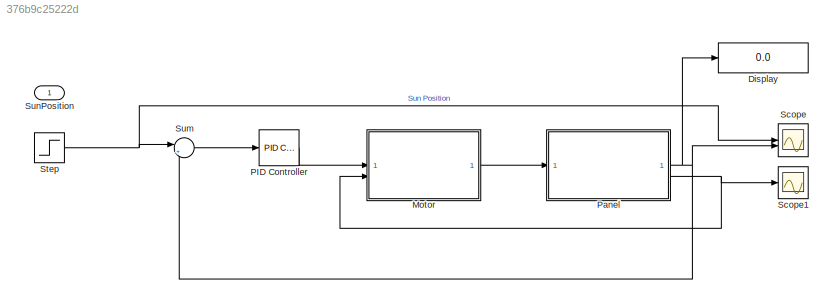
MODEL slx_376b9c25222d
KIND model
CONFIG AbsTol = auto
CONFIG EnableMultiTasking = off
CONFIG FixedStep = auto
CONFIG MaxStep = auto
CONFIG MinStep = auto
CONFIG RelTol = 1e-3
CONFIG SampleTimeConstraint = Unconstrained
CONFIG SolverName = VariableStepAuto
CONFIG StartTime = 0.0
CONFIG StopTime = 3600
BLOCK [Display] Display
  Decimation = 1
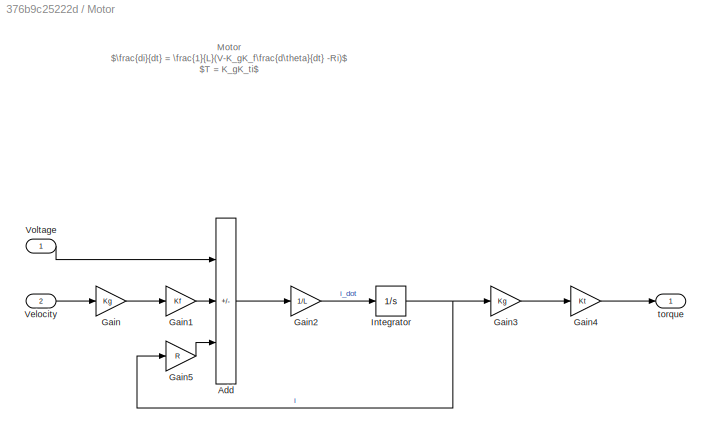
BLOCK [SubSystem] Motor
BLOCK [Sum] Motor/Add
  IconShape = rectangular
  Inputs = +--
BLOCK [Gain] Motor/Gain
  Gain = Kg
BLOCK [Gain] Motor/Gain1
  Gain = Kf
BLOCK [Gain] Motor/Gain2
  Gain = 1/L
BLOCK [Gain] Motor/Gain3
  Gain = Kg
BLOCK [Gain] Motor/Gain4
  Gain = Kt
BLOCK [Gain] Motor/Gain5
  Gain = R
BLOCK [Integrator] Motor/Integrator
BLOCK [Inport] Motor/Velocity
  Port = 2
BLOCK [Inport] Motor/Voltage
BLOCK [Outport] Motor/torque
BLOCK [Reference] PID Controller  REF=slpidlib/PID Controller
  LibrarySourceBlock = simulink/Continuous/PID Controller
  SourceBlock = slpidlib/PID Controller
  SourceType = PID 1dof
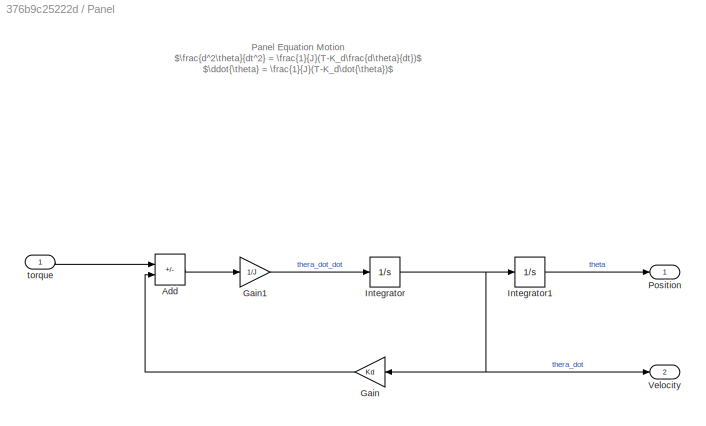
BLOCK [SubSystem] Panel
BLOCK [Sum] Panel/Add
  IconShape = rectangular
  Inputs = +-
BLOCK [Gain] Panel/Gain
  Gain = Kd
  NameLocation = top
BLOCK [Gain] Panel/Gain1
  Gain = 1/J
BLOCK [Integrator] Panel/Integrator
BLOCK [Integrator] Panel/Integrator1
BLOCK [Outport] Panel/Position
BLOCK [Outport] Panel/Velocity
  Port = 2
BLOCK [Inport] Panel/torque
BLOCK [Scope] Scope
  ActiveDisplayYMaximum = 1
  ActiveDisplayYMinimum = -1
  ContainerLayout = {"WindowBounds":[1920,0,1080,1920]}
  Floating = off
  GraphicalSettings = {"AxesScalingProperties":{"AlignXAxis":"Center","AlignYAxis":"Center","AutoScaleXAxisLimits":false,"AxesScaling":"Manual","AxesScalingNumUpdates":10,"ExpandOnly":true,"ScaleAxesLimitsAtStop":false,"XAxisDataRange":100,"YAxisDataRange":80},"DisplayProperties":{"ColorOrder":["auto","auto","auto","auto","auto","auto","auto","auto","auto","auto","auto","auto","auto","auto","auto","auto","auto","auto",...<+40675ch>
  MultipleDisplayCache = [{"MaxYLimMag":1,"MaxYLimReal":1,"MinYLimMag":0,"MinYLimReal":-1,"PlotAsMagnitudePhase":false,"ShowGrid":true,"ShowLegend":true,"Title":"Solar Panel's Motor and Panel Assembly","YLabel":""}]
  NumInputPorts = 2
  ScopeFrameLocation = container
  ShowLegend = on
  Title = Solar Panel's Motor and Panel Assembly
  Visible = on
  WasSavedAsWebScope = on
  WindowPosition = [1921.000000,-839.000000,1080.000000,1883.000000,]
BLOCK [Scope] Scope1
  ActiveDisplayYMaximum = 1
  ActiveDisplayYMinimum = -1
  ContainerLayout = {"WindowBounds":[2221,324,666,519]}
  DataLoggingVariableName = ScopeData1
  Floating = off
  GraphicalSettings = {"Style":{"BackgroundColor":[0.12941176470588237,0.12941176470588237,0.12941176470588237],"AxesColor":[0.07058823529411765,0.07058823529411765,0.07058823529411765],"LabelsColor":[0.8509803921568627,0.8509803921568627,0.8509803921568627],"PreserveColors":false,"Visible":[true],"LineStyle":["-"],"LineWidth":[1.5],"BarWidth":[0.9],"LineColor":["auto"],"LineFaceAlpha":[1],"LineEdgeAlpha":[1],"Marker":...<+2015ch>
  MultipleDisplayCache = [{"MaxYLimMag":1,"MaxYLimReal":1,"MinYLimMag":0,"MinYLimReal":-1,"PlotAsMagnitudePhase":false,"ShowGrid":true,"ShowLegend":false,"Title":"%<SignalLabel>","YLabel":""}]
  NumInputPorts = 1
  ScopeFrameLocation = container
  WasSavedAsWebScope = on
  WindowPosition = [2222.000000,238.000000,666.000000,482.000000,]
BLOCK [Step] Step
  After = sunPosition
  SampleTime = 0
BLOCK [Sum] Sum
  Inputs = |+-
BLOCK [Inport] SunPosition
ANNOTATION Motor: Motor $\frac{di}{dt} = \frac{1}{L}(V-K_gK_f\frac{d\theta}{dt} -Ri)$ $T = K_gK_ti$
ANNOTATION Panel: Panel Equation Motion $\frac{d^2\theta}{dt^2} = \frac{1}{J}(T-K_d\frac{d\theta}{dt})$ $\ddot{\theta} = \frac{1}{J}(T-K_d\dot{\theta})$
LINE Motor/Add:1 -> Motor/Gain2:1
LINE Motor/Gain1:1 -> Motor/Add:2
LINE Motor/Gain2:1 -> Motor/Integrator:1
LINE Motor/Gain3:1 -> Motor/Gain4:1
LINE Motor/Gain4:1 -> Motor/torque:1
LINE Motor/Gain5:1 -> Motor/Add:3
LINE Motor/Gain:1 -> Motor/Gain1:1
NET Motor/Integrator:1 -> Motor/Gain3:1, Motor/Gain5:1
LINE Motor/Velocity:1 -> Motor/Gain:1
LINE Motor/Voltage:1 -> Motor/Add:1
LINE Motor:1 -> Panel:1
LINE PID Controller:1 -> Motor:1
LINE Panel/Add:1 -> Panel/Gain1:1
LINE Panel/Gain1:1 -> Panel/Integrator:1
LINE Panel/Gain:1 -> Panel/Add:2
LINE Panel/Integrator1:1 -> Panel/Position:1
NET Panel/Integrator:1 -> Panel/Gain:1, Panel/Integrator1:1, Panel/Velocity:1
LINE Panel/torque:1 -> Panel/Add:1
NET Panel:1 -> Display:1, Scope:2, Sum:2
NET Panel:2 -> Motor:2, Scope1:1
NET Step:1 -> Scope:1, Sum:1
LINE Sum:1 -> PID Controller:1
note: NET lines group one-source signal fan-out (src -> all destinations, sorted); 1:1 wires keep LINE
